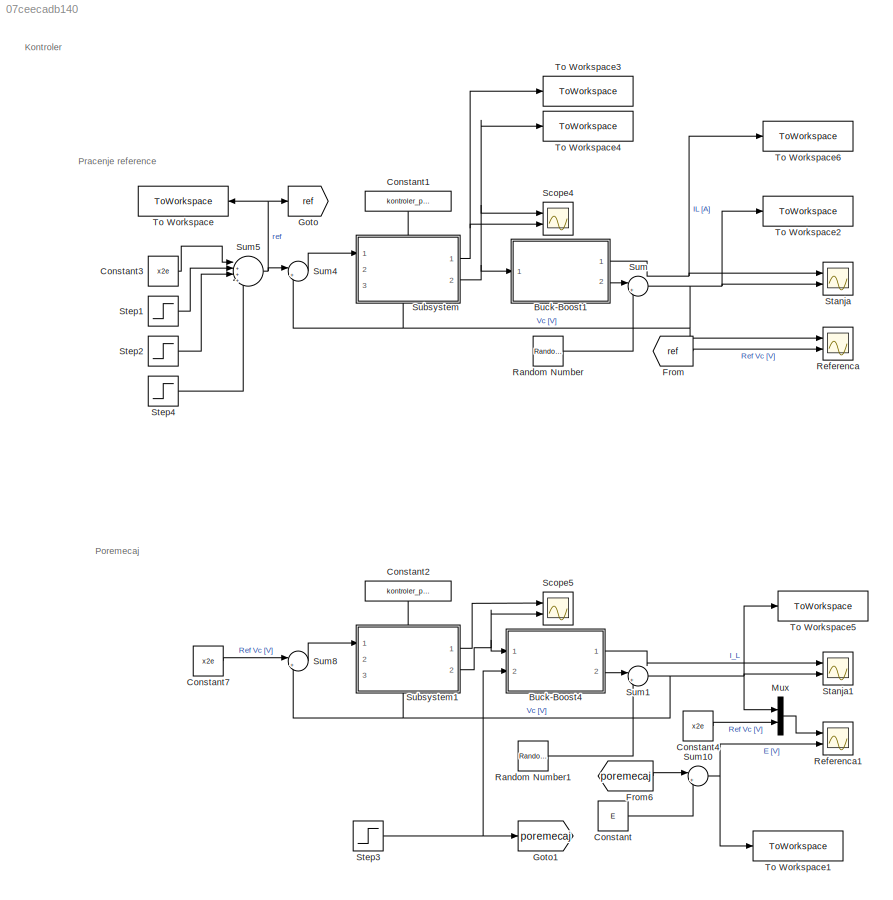
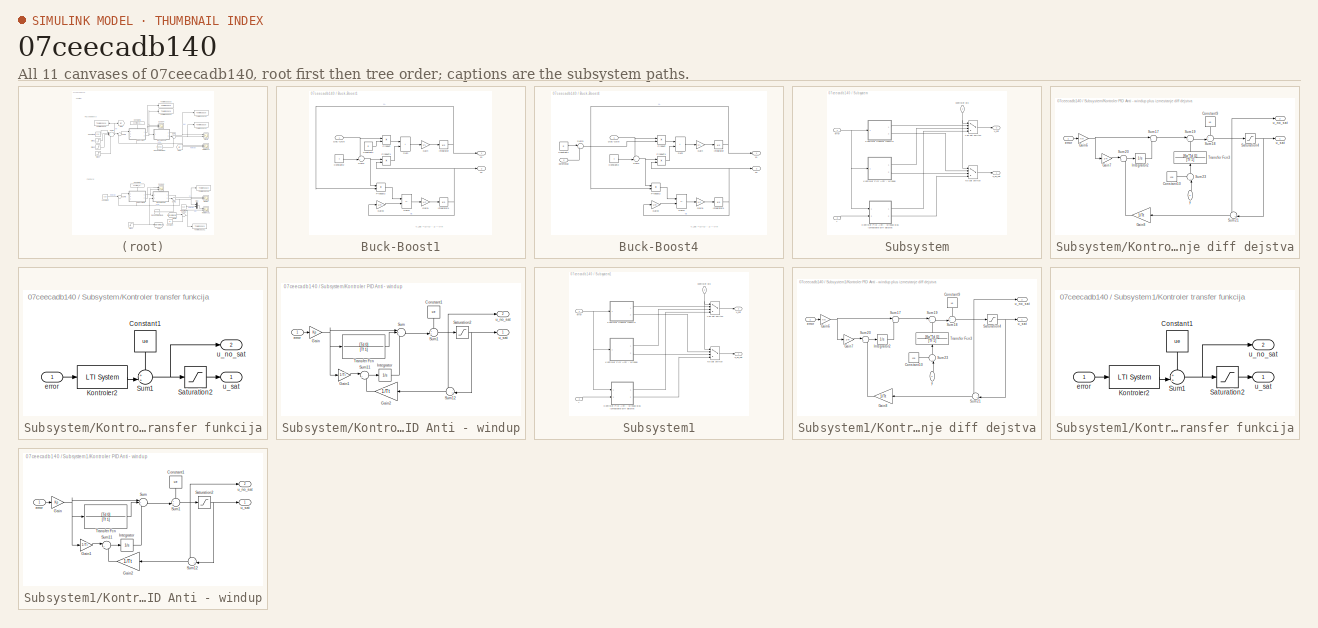
[diagram: thumbnail index - all 11 canvases of the model, root first then tree order]
MODEL slx_07ceecadb140
KIND model
CONFIG AbsTol = auto
CONFIG EnableMultiTasking = off
CONFIG FixedStep = time_step
CONFIG MaxStep = auto
CONFIG MinStep = auto
CONFIG RelTol = 1e-3
CONFIG SampleTimeConstraint = Unconstrained
CONFIG Solver = FixedStepAuto
CONFIG SolverName = FixedStepAuto
CONFIG StartTime = 0.0
CONFIG StopTime = sim_duration
BLOCK [SubSystem] Buck-Boost1
  Ports = [1, 2]
  RequestExecContextInheritance = off
BLOCK [Constant] Buck-Boost1/Constant1
  Value = E
BLOCK [Constant] Buck-Boost1/Constant2
BLOCK [Inport] Buck-Boost1/Duty cycle
BLOCK [Gain] Buck-Boost1/Gain
  Gain = 1/L
BLOCK [Gain] Buck-Boost1/Gain1
  Gain = 1/C
BLOCK [Gain] Buck-Boost1/Gain2
  Gain = 1/R
BLOCK [Integrator] Buck-Boost1/Integrator
  Ports = [1, 1]
BLOCK [Integrator] Buck-Boost1/Integrator1
  Ports = [1, 1]
BLOCK [Product] Buck-Boost1/Product
  Ports = [2, 1]
BLOCK [Product] Buck-Boost1/Product1
  Ports = [2, 1]
BLOCK [Product] Buck-Boost1/Product2
  Ports = [2, 1]
BLOCK [Sum] Buck-Boost1/Sum
  IconShape = rectangular
  Ports = [2, 1]
BLOCK [Sum] Buck-Boost1/Sum1
  Inputs = -+|
  Ports = [2, 1]
BLOCK [Sum] Buck-Boost1/Sum2
  IconShape = rectangular
  Inputs = --
  Ports = [2, 1]
BLOCK [Outport] Buck-Boost1/x1
BLOCK [Outport] Buck-Boost1/x2
  Port = 2
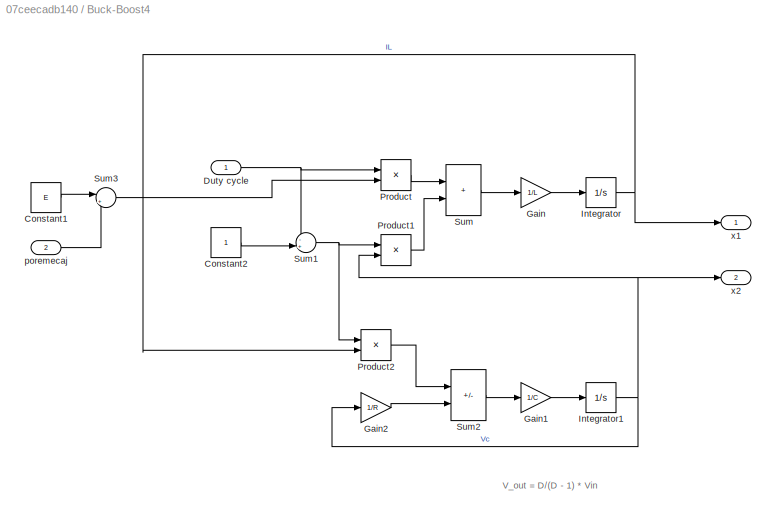
BLOCK [SubSystem] Buck-Boost4
  Ports = [2, 2]
  RequestExecContextInheritance = off
BLOCK [Constant] Buck-Boost4/Constant1
  Value = E
BLOCK [Constant] Buck-Boost4/Constant2
BLOCK [Inport] Buck-Boost4/Duty cycle
BLOCK [Gain] Buck-Boost4/Gain
  Gain = 1/L
BLOCK [Gain] Buck-Boost4/Gain1
  Gain = 1/C
BLOCK [Gain] Buck-Boost4/Gain2
  Gain = 1/R
BLOCK [Integrator] Buck-Boost4/Integrator
  Ports = [1, 1]
BLOCK [Integrator] Buck-Boost4/Integrator1
  Ports = [1, 1]
BLOCK [Product] Buck-Boost4/Product
  Ports = [2, 1]
BLOCK [Product] Buck-Boost4/Product1
  Ports = [2, 1]
BLOCK [Product] Buck-Boost4/Product2
  Ports = [2, 1]
BLOCK [Sum] Buck-Boost4/Sum
  IconShape = rectangular
  Ports = [2, 1]
BLOCK [Sum] Buck-Boost4/Sum1
  Inputs = -+|
  Ports = [2, 1]
BLOCK [Sum] Buck-Boost4/Sum2
  IconShape = rectangular
  Inputs = --
  Ports = [2, 1]
BLOCK [Sum] Buck-Boost4/Sum3
  Inputs = |++
  Ports = [2, 1]
BLOCK [Inport] Buck-Boost4/poremecaj
  Port = 2
BLOCK [Outport] Buck-Boost4/x1
BLOCK [Outport] Buck-Boost4/x2
  Port = 2
BLOCK [Constant] Constant
  Value = E
BLOCK [Constant] Constant1
  NameLocation = left
  Value = kontroler_pik
BLOCK [Constant] Constant2
  NameLocation = left
  Value = kontroler_pik
BLOCK [Constant] Constant3
  Value = x2e
BLOCK [Constant] Constant4
  Value = x2e
BLOCK [Constant] Constant7
  Value = x2e
BLOCK [From] From
  GotoTag = ref
BLOCK [From] From6
  GotoTag = poremecaj
BLOCK [Goto] Goto
  GotoTag = ref
BLOCK [Goto] Goto1
  GotoTag = poremecaj
BLOCK [Mux] Mux
  DisplayOption = bar
  Inputs = 2
  Ports = [2, 1]
BLOCK [RandomNumber] Random Number
  SampleTime = time_step
  Variance = sigma^2
BLOCK [RandomNumber] Random Number1
  SampleTime = time_step
  Variance = sigma^2
BLOCK [Scope] Referenca
  Floating = off
  NumInputPorts = 2
  Ports = [2]
  ScopeSpecificationString = Simulink.scopes.TimeScopeBlockCfg('CurrentConfiguration', extmgr.ConfigurationSet(extmgr.Configuration('Core','General UI',true),extmgr.Configuration('Core','Source UI',true),extmgr.Configuration('Sources','WiredSimulink',true,'DataLoggingVariableName','ScopeData1'),extmgr.Configuration('Visuals','Time Domain',true,'SerializedDisplays',{struct('MinYLimReal','-26.74199','MaxYLimReal','3.02947','YLa...<+1457ch>
BLOCK [Scope] Referenca1
  Floating = off
  NumInputPorts = 2
  Ports = [2]
  ScopeSpecificationString = Simulink.scopes.TimeScopeBlockCfg('CurrentConfiguration', extmgr.ConfigurationSet(extmgr.Configuration('Core','General UI',true),extmgr.Configuration('Core','Source UI',true),extmgr.Configuration('Sources','WiredSimulink',true,'DataLoggingVariableName','ScopeData2'),extmgr.Configuration('Visuals','Time Domain',true,'SerializedDisplays',{struct('MinYLimReal','-25.3125','MaxYLimReal','2.8125','YLabe...<+2094ch>
BLOCK [Scope] Scope4
  Floating = off
  NumInputPorts = 2
  Ports = [2]
  ScopeSpecificationString = Simulink.scopes.TimeScopeBlockCfg('CurrentConfiguration', extmgr.ConfigurationSet(extmgr.Configuration('Core','General UI',true),extmgr.Configuration('Core','Source UI',true),extmgr.Configuration('Sources','WiredSimulink',true,'DataLoggingVariableName','ScopeData3'),extmgr.Configuration('Visuals','Time Domain',true,'SerializedDisplays',{struct('MinYLimReal','-32624592998600632184942873490636918890...<+3933ch>
BLOCK [Scope] Scope5
  Floating = off
  NumInputPorts = 2
  Ports = [2]
  ScopeSpecificationString = Simulink.scopes.TimeScopeBlockCfg('CurrentConfiguration', extmgr.ConfigurationSet(extmgr.Configuration('Core','General UI',true),extmgr.Configuration('Core','Source UI',true),extmgr.Configuration('Sources','WiredSimulink',true,'DataLoggingVariableName','ScopeData4'),extmgr.Configuration('Visuals','Time Domain',true,'SerializedDisplays',{struct('MinYLimReal','0.5077','MaxYLimReal','0.77377','YLabel...<+1397ch>
BLOCK [Scope] Stanja
  Floating = off
  NumInputPorts = 2
  Ports = [2]
  ScopeSpecificationString = Simulink.scopes.TimeScopeBlockCfg('CurrentConfiguration', extmgr.ConfigurationSet(extmgr.Configuration('Core','General UI',true),extmgr.Configuration('Core','Source UI',true),extmgr.Configuration('Sources','WiredSimulink',true,'DataLoggingVariableName','ScopeData5'),extmgr.Configuration('Visuals','Time Domain',true,'SerializedDisplays',{struct('MinYLimReal','-10.64085','MaxYLimReal','9.70726','YLa...<+1420ch>
BLOCK [Scope] Stanja1
  Floating = off
  NumInputPorts = 2
  Ports = [2]
  ScopeSpecificationString = Simulink.scopes.TimeScopeBlockCfg('CurrentConfiguration', extmgr.ConfigurationSet(extmgr.Configuration('Core','General UI',true),extmgr.Configuration('Core','Source UI',true),extmgr.Configuration('Sources','WiredSimulink',true),extmgr.Configuration('Visuals','Time Domain',true,'SerializedDisplays',{struct('MinYLimReal','-57.65482','MaxYLimReal','15.04043','YLabelReal','','MinYLimMag','0.00000','Ma...<+1377ch>
BLOCK [Step] Step1
  After = amp_ref_stepdown1
  SampleTime = 0
  Time = t_ref_stepdown1
BLOCK [Step] Step2
  After = amp_ref_stepup1
  SampleTime = 0
  Time = t_ref_stepup1
BLOCK [Step] Step3
  After = amp_poremecaj
  SampleTime = 0
  Time = t_poremecaj
BLOCK [Step] Step4
  After = amp_ref_stepdown2
  SampleTime = 0
  Time = t_ref_stepdown2
BLOCK [SubSystem] Subsystem
  PortSchema = {"entries":[{"content":{"sides":[{"content":{"connectorIds":["In1"]},"type":"ConnectorPlacement.EquallySpacedRectSide","uuid":"0048fda4-5b4a-456a-8337-060e5808e354"},{"content":{"connectorIds":["Out1","Out2"],"side":"RIGHT"},"type":"ConnectorPlacement.EquallySpacedRectSide","uuid":"02cdbfc3-6320-4e2f-beb2-fd4bcb343bc0"},{"content":{"connectorIds":["In2"],"side":"TOP"},"type":"ConnectorPlacement.Eq...<+403ch>
  Ports = [3, 2]
  RequestExecContextInheritance = off
BLOCK [SubSystem] Subsystem/Kontroler PID Anti - windup
  Ports = [1, 2]
  RequestExecContextInheritance = off
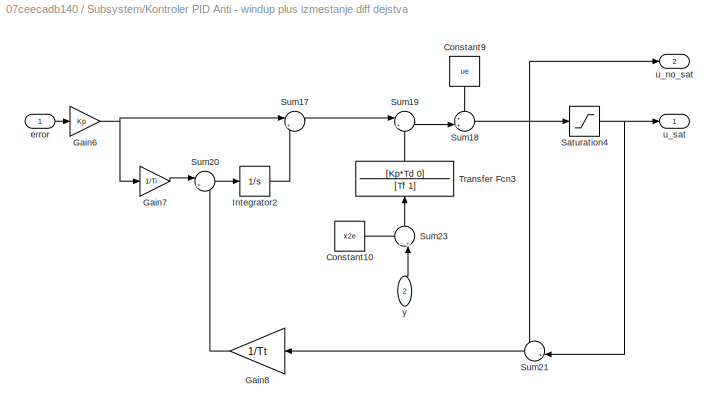
BLOCK [SubSystem] Subsystem/Kontroler PID Anti - windup plus izmestanje diff dejstva
  Ports = [2, 2]
  RequestExecContextInheritance = off
BLOCK [Constant] Subsystem/Kontroler PID Anti - windup plus izmestanje diff dejstva/Constant10
  Value = x2e
BLOCK [Constant] Subsystem/Kontroler PID Anti - windup plus izmestanje diff dejstva/Constant9
  NameLocation = left
  Value = ue
BLOCK [Gain] Subsystem/Kontroler PID Anti - windup plus izmestanje diff dejstva/Gain6
  Gain = Kp
BLOCK [Gain] Subsystem/Kontroler PID Anti - windup plus izmestanje diff dejstva/Gain7
  Gain = 1/Ti
BLOCK [Gain] Subsystem/Kontroler PID Anti - windup plus izmestanje diff dejstva/Gain8
  Gain = 1/Tt
  NameLocation = top
BLOCK [Integrator] Subsystem/Kontroler PID Anti - windup plus izmestanje diff dejstva/Integrator2
  Ports = [1, 1]
BLOCK [Saturate] Subsystem/Kontroler PID Anti - windup plus izmestanje diff dejstva/Saturation4
  LowerLimit = 0
  UpperLimit = 1
BLOCK [Sum] Subsystem/Kontroler PID Anti - windup plus izmestanje diff dejstva/Sum17
  Inputs = |++
  Ports = [2, 1]
BLOCK [Sum] Subsystem/Kontroler PID Anti - windup plus izmestanje diff dejstva/Sum18
  Inputs = ++|
  Ports = [2, 1]
BLOCK [Sum] Subsystem/Kontroler PID Anti - windup plus izmestanje diff dejstva/Sum19
  Inputs = |+-
  Ports = [2, 1]
BLOCK [Sum] Subsystem/Kontroler PID Anti - windup plus izmestanje diff dejstva/Sum20
  Inputs = |++
  Ports = [2, 1]
BLOCK [Sum] Subsystem/Kontroler PID Anti - windup plus izmestanje diff dejstva/Sum21
  Inputs = -+|
  Ports = [2, 1]
BLOCK [Sum] Subsystem/Kontroler PID Anti - windup plus izmestanje diff dejstva/Sum23
  Inputs = -+|
  NameLocation = right
  Ports = [2, 1]
BLOCK [TransferFcn] Subsystem/Kontroler PID Anti - windup plus izmestanje diff dejstva/Transfer Fcn3
  Denominator = [Tf 1]
  NameLocation = right
  Numerator = [Kp*Td 0]
BLOCK [Inport] Subsystem/Kontroler PID Anti - windup plus izmestanje diff dejstva/error
BLOCK [Outport] Subsystem/Kontroler PID Anti - windup plus izmestanje diff dejstva/u_no_sat
  Port = 2
BLOCK [Outport] Subsystem/Kontroler PID Anti - windup plus izmestanje diff dejstva/u_sat
BLOCK [Inport] Subsystem/Kontroler PID Anti - windup plus izmestanje diff dejstva/y
  NameLocation = right
  Port = 2
BLOCK [Constant] Subsystem/Kontroler PID Anti - windup/Constant1
  NameLocation = left
  Value = ue
BLOCK [Gain] Subsystem/Kontroler PID Anti - windup/Gain
  Gain = Kp
BLOCK [Gain] Subsystem/Kontroler PID Anti - windup/Gain1
  Gain = 1/Ti
BLOCK [Gain] Subsystem/Kontroler PID Anti - windup/Gain2
  Gain = 1/Tt
  NameLocation = top
BLOCK [Integrator] Subsystem/Kontroler PID Anti - windup/Integrator
  Ports = [1, 1]
BLOCK [Saturate] Subsystem/Kontroler PID Anti - windup/Saturation2
  LowerLimit = 0
  UpperLimit = 1
BLOCK [Sum] Subsystem/Kontroler PID Anti - windup/Sum
  Inputs = |+++
  Ports = [3, 1]
BLOCK [Sum] Subsystem/Kontroler PID Anti - windup/Sum1
  Inputs = ++|
  Ports = [2, 1]
BLOCK [Sum] Subsystem/Kontroler PID Anti - windup/Sum11
  Inputs = |++
  Ports = [2, 1]
BLOCK [Sum] Subsystem/Kontroler PID Anti - windup/Sum12
  Inputs = -+|
  Ports = [2, 1]
BLOCK [TransferFcn] Subsystem/Kontroler PID Anti - windup/Transfer Fcn
  Denominator = [Tf 1]
  Numerator = [Td 0]
BLOCK [Inport] Subsystem/Kontroler PID Anti - windup/error
BLOCK [Outport] Subsystem/Kontroler PID Anti - windup/u_no_sat
  Port = 2
BLOCK [Outport] Subsystem/Kontroler PID Anti - windup/u_sat
BLOCK [SubSystem] Subsystem/Kontroler transfer funkcija
  Ports = [1, 2]
  RequestExecContextInheritance = off
BLOCK [Constant] Subsystem/Kontroler transfer funkcija/Constant1
  NameLocation = left
  Value = ue
BLOCK [Reference] Subsystem/Kontroler transfer funkcija/Kontroler2  REF=cstblocks/LTI System
  Ports = [1, 1]
  SourceBlock = cstblocks/LTI System
  SourceProductBaseCode = CT
  SourceType = LTI Block
BLOCK [Saturate] Subsystem/Kontroler transfer funkcija/Saturation2
  LowerLimit = 0
  UpperLimit = 1
BLOCK [Sum] Subsystem/Kontroler transfer funkcija/Sum1
  Inputs = ++|
  Ports = [2, 1]
BLOCK [Inport] Subsystem/Kontroler transfer funkcija/error
BLOCK [Outport] Subsystem/Kontroler transfer funkcija/u_no_sat
  Port = 2
BLOCK [Outport] Subsystem/Kontroler transfer funkcija/u_sat
BLOCK [MultiPortSwitch] Subsystem/No sat switch
  InputSameDT = off
  Ports = [4, 1]
  SaturateOnIntegerOverflow = off
BLOCK [MultiPortSwitch] Subsystem/Yes sat switch
  InputSameDT = off
  Ports = [4, 1]
  SaturateOnIntegerOverflow = off
BLOCK [Inport] Subsystem/error
BLOCK [Inport] Subsystem/kontroler pik
  NameLocation = left
  Port = 2
BLOCK [Outport] Subsystem/u_no_sat
BLOCK [Outport] Subsystem/u_sat
  Port = 2
BLOCK [Inport] Subsystem/y
  Port = 3
BLOCK [SubSystem] Subsystem1
  PortSchema = {"entries":[{"content":{"sides":[{"content":{"connectorIds":["In1"]},"type":"ConnectorPlacement.EquallySpacedRectSide","uuid":"0048fda4-5b4a-456a-8337-060e5808e354"},{"content":{"connectorIds":["Out1","Out2"],"side":"RIGHT"},"type":"ConnectorPlacement.EquallySpacedRectSide","uuid":"02cdbfc3-6320-4e2f-beb2-fd4bcb343bc0"},{"content":{"connectorIds":["In2"],"side":"TOP"},"type":"ConnectorPlacement.Eq...<+403ch>
  Ports = [3, 2]
  RequestExecContextInheritance = off
BLOCK [SubSystem] Subsystem1/Kontroler PID Anti - windup
  Ports = [1, 2]
  RequestExecContextInheritance = off
BLOCK [SubSystem] Subsystem1/Kontroler PID Anti - windup plus izmestanje diff dejstva
  Ports = [2, 2]
  RequestExecContextInheritance = off
BLOCK [Constant] Subsystem1/Kontroler PID Anti - windup plus izmestanje diff dejstva/Constant10
  Value = x2e
BLOCK [Constant] Subsystem1/Kontroler PID Anti - windup plus izmestanje diff dejstva/Constant9
  NameLocation = left
  Value = ue
BLOCK [Gain] Subsystem1/Kontroler PID Anti - windup plus izmestanje diff dejstva/Gain6
  Gain = Kp
BLOCK [Gain] Subsystem1/Kontroler PID Anti - windup plus izmestanje diff dejstva/Gain7
  Gain = 1/Ti
BLOCK [Gain] Subsystem1/Kontroler PID Anti - windup plus izmestanje diff dejstva/Gain8
  Gain = 1/Tt
  NameLocation = top
BLOCK [Integrator] Subsystem1/Kontroler PID Anti - windup plus izmestanje diff dejstva/Integrator2
  Ports = [1, 1]
BLOCK [Saturate] Subsystem1/Kontroler PID Anti - windup plus izmestanje diff dejstva/Saturation4
  LowerLimit = 0
  UpperLimit = 1
BLOCK [Sum] Subsystem1/Kontroler PID Anti - windup plus izmestanje diff dejstva/Sum17
  Inputs = |++
  Ports = [2, 1]
BLOCK [Sum] Subsystem1/Kontroler PID Anti - windup plus izmestanje diff dejstva/Sum18
  Inputs = ++|
  Ports = [2, 1]
BLOCK [Sum] Subsystem1/Kontroler PID Anti - windup plus izmestanje diff dejstva/Sum19
  Inputs = |+-
  Ports = [2, 1]
BLOCK [Sum] Subsystem1/Kontroler PID Anti - windup plus izmestanje diff dejstva/Sum20
  Inputs = |++
  Ports = [2, 1]
BLOCK [Sum] Subsystem1/Kontroler PID Anti - windup plus izmestanje diff dejstva/Sum21
  Inputs = -+|
  Ports = [2, 1]
BLOCK [Sum] Subsystem1/Kontroler PID Anti - windup plus izmestanje diff dejstva/Sum23
  Inputs = -+|
  NameLocation = right
  Ports = [2, 1]
BLOCK [TransferFcn] Subsystem1/Kontroler PID Anti - windup plus izmestanje diff dejstva/Transfer Fcn3
  Denominator = [Tf 1]
  NameLocation = right
  Numerator = [Kp*Td 0]
BLOCK [Inport] Subsystem1/Kontroler PID Anti - windup plus izmestanje diff dejstva/error
BLOCK [Outport] Subsystem1/Kontroler PID Anti - windup plus izmestanje diff dejstva/u_no_sat
  Port = 2
BLOCK [Outport] Subsystem1/Kontroler PID Anti - windup plus izmestanje diff dejstva/u_sat
BLOCK [Inport] Subsystem1/Kontroler PID Anti - windup plus izmestanje diff dejstva/y
  NameLocation = right
  Port = 2
BLOCK [Constant] Subsystem1/Kontroler PID Anti - windup/Constant1
  NameLocation = left
  Value = ue
BLOCK [Gain] Subsystem1/Kontroler PID Anti - windup/Gain
  Gain = Kp
BLOCK [Gain] Subsystem1/Kontroler PID Anti - windup/Gain1
  Gain = 1/Ti
BLOCK [Gain] Subsystem1/Kontroler PID Anti - windup/Gain2
  Gain = 1/Tt
  NameLocation = top
BLOCK [Integrator] Subsystem1/Kontroler PID Anti - windup/Integrator
  Ports = [1, 1]
BLOCK [Saturate] Subsystem1/Kontroler PID Anti - windup/Saturation2
  LowerLimit = 0
  UpperLimit = 1
BLOCK [Sum] Subsystem1/Kontroler PID Anti - windup/Sum
  Inputs = |+++
  Ports = [3, 1]
BLOCK [Sum] Subsystem1/Kontroler PID Anti - windup/Sum1
  Inputs = ++|
  Ports = [2, 1]
BLOCK [Sum] Subsystem1/Kontroler PID Anti - windup/Sum11
  Inputs = |++
  Ports = [2, 1]
BLOCK [Sum] Subsystem1/Kontroler PID Anti - windup/Sum12
  Inputs = -+|
  Ports = [2, 1]
BLOCK [TransferFcn] Subsystem1/Kontroler PID Anti - windup/Transfer Fcn
  Denominator = [Tf 1]
  Numerator = [Td 0]
BLOCK [Inport] Subsystem1/Kontroler PID Anti - windup/error
BLOCK [Outport] Subsystem1/Kontroler PID Anti - windup/u_no_sat
  Port = 2
BLOCK [Outport] Subsystem1/Kontroler PID Anti - windup/u_sat
BLOCK [SubSystem] Subsystem1/Kontroler transfer funkcija
  Ports = [1, 2]
  RequestExecContextInheritance = off
BLOCK [Constant] Subsystem1/Kontroler transfer funkcija/Constant1
  NameLocation = left
  Value = ue
BLOCK [Reference] Subsystem1/Kontroler transfer funkcija/Kontroler2  REF=cstblocks/LTI System
  Ports = [1, 1]
  SourceBlock = cstblocks/LTI System
  SourceProductBaseCode = CT
  SourceType = LTI Block
BLOCK [Saturate] Subsystem1/Kontroler transfer funkcija/Saturation2
  LowerLimit = 0
  UpperLimit = 1
BLOCK [Sum] Subsystem1/Kontroler transfer funkcija/Sum1
  Inputs = ++|
  Ports = [2, 1]
BLOCK [Inport] Subsystem1/Kontroler transfer funkcija/error
BLOCK [Outport] Subsystem1/Kontroler transfer funkcija/u_no_sat
  Port = 2
BLOCK [Outport] Subsystem1/Kontroler transfer funkcija/u_sat
BLOCK [MultiPortSwitch] Subsystem1/No sat switch
  InputSameDT = off
  Ports = [4, 1]
  SaturateOnIntegerOverflow = off
BLOCK [MultiPortSwitch] Subsystem1/Yes sat switch
  InputSameDT = off
  Ports = [4, 1]
  SaturateOnIntegerOverflow = off
BLOCK [Inport] Subsystem1/error
BLOCK [Inport] Subsystem1/kontroler pik
  NameLocation = left
  Port = 2
BLOCK [Outport] Subsystem1/u_no_sat
BLOCK [Outport] Subsystem1/u_sat
  Port = 2
BLOCK [Inport] Subsystem1/y
  Port = 3
BLOCK [Sum] Sum
  Inputs = |++
  Ports = [2, 1]
BLOCK [Sum] Sum1
  Inputs = |++
  Ports = [2, 1]
BLOCK [Sum] Sum10
  Inputs = |++
  Ports = [2, 1]
BLOCK [Sum] Sum4
  Inputs = |+-
  Ports = [2, 1]
BLOCK [Sum] Sum5
  Inputs = |++++
  Ports = [4, 1]
BLOCK [Sum] Sum8
  Inputs = |+-
  Ports = [2, 1]
BLOCK [ToWorkspace] To Workspace
  FixptAsFi = on
  MaxDataPoints = inf
  Ports = [1]
  SampleTime = -1
  SaveFormat = Timeseries
  VariableName = referenca
BLOCK [ToWorkspace] To Workspace1
  FixptAsFi = on
  MaxDataPoints = inf
  Ports = [1]
  SampleTime = -1
  SaveFormat = Timeseries
  VariableName = poremecaj
BLOCK [ToWorkspace] To Workspace2
  FixptAsFi = on
  MaxDataPoints = inf
  Ports = [1]
  SampleTime = -1
  SaveFormat = Timeseries
  VariableName = x2
BLOCK [ToWorkspace] To Workspace3
  FixptAsFi = on
  MaxDataPoints = inf
  Ports = [1]
  SampleTime = -1
  SaveFormat = Timeseries
  VariableName = u
BLOCK [ToWorkspace] To Workspace4
  FixptAsFi = on
  MaxDataPoints = inf
  Ports = [1]
  SampleTime = -1
  SaveFormat = Timeseries
  VariableName = u_sat
BLOCK [ToWorkspace] To Workspace5
  FixptAsFi = on
  MaxDataPoints = inf
  Ports = [1]
  SampleTime = -1
  SaveFormat = Timeseries
  VariableName = x2_poremecaj
BLOCK [ToWorkspace] To Workspace6
  FixptAsFi = on
  MaxDataPoints = inf
  Ports = [1]
  SampleTime = -1
  SaveFormat = Timeseries
  VariableName = x1
ANNOTATION (root): Kontroler
ANNOTATION (root): Poremecaj
ANNOTATION (root): Pracenje reference
ANNOTATION Buck-Boost1: V_out = D/(D - 1) * Vin
ANNOTATION Buck-Boost4: V_out = D/(D - 1) * Vin
LINE Buck-Boost1/Constant1:1 -> Buck-Boost1/Product:2
LINE Buck-Boost1/Constant2:1 -> Buck-Boost1/Sum1:2
NET Buck-Boost1/Duty cycle:1 -> Buck-Boost1/Product:1, Buck-Boost1/Sum1:1
LINE Buck-Boost1/Gain1:1 -> Buck-Boost1/Integrator1:1
LINE Buck-Boost1/Gain2:1 -> Buck-Boost1/Sum2:2
LINE Buck-Boost1/Gain:1 -> Buck-Boost1/Integrator:1
NET Buck-Boost1/Integrator1:1 -> Buck-Boost1/Gain2:1, Buck-Boost1/Product1:2, Buck-Boost1/x2:1
NET Buck-Boost1/Integrator:1 -> Buck-Boost1/Product2:2, Buck-Boost1/x1:1
LINE Buck-Boost1/Product1:1 -> Buck-Boost1/Sum:2
LINE Buck-Boost1/Product2:1 -> Buck-Boost1/Sum2:1
LINE Buck-Boost1/Product:1 -> Buck-Boost1/Sum:1
NET Buck-Boost1/Sum1:1 -> Buck-Boost1/Product1:1, Buck-Boost1/Product2:1
LINE Buck-Boost1/Sum2:1 -> Buck-Boost1/Gain1:1
LINE Buck-Boost1/Sum:1 -> Buck-Boost1/Gain:1
NET Buck-Boost1:1 -> Stanja:1, To Workspace6:1
LINE Buck-Boost1:2 -> Sum:1
LINE Buck-Boost4/Constant1:1 -> Buck-Boost4/Sum3:1
LINE Buck-Boost4/Constant2:1 -> Buck-Boost4/Sum1:2
NET Buck-Boost4/Duty cycle:1 -> Buck-Boost4/Product:1, Buck-Boost4/Sum1:1
LINE Buck-Boost4/Gain1:1 -> Buck-Boost4/Integrator1:1
LINE Buck-Boost4/Gain2:1 -> Buck-Boost4/Sum2:2
LINE Buck-Boost4/Gain:1 -> Buck-Boost4/Integrator:1
NET Buck-Boost4/Integrator1:1 -> Buck-Boost4/Gain2:1, Buck-Boost4/Product1:2, Buck-Boost4/x2:1
NET Buck-Boost4/Integrator:1 -> Buck-Boost4/Product2:2, Buck-Boost4/x1:1
LINE Buck-Boost4/Product1:1 -> Buck-Boost4/Sum:2
LINE Buck-Boost4/Product2:1 -> Buck-Boost4/Sum2:1
LINE Buck-Boost4/Product:1 -> Buck-Boost4/Sum:1
NET Buck-Boost4/Sum1:1 -> Buck-Boost4/Product1:1, Buck-Boost4/Product2:1
LINE Buck-Boost4/Sum2:1 -> Buck-Boost4/Gain1:1
LINE Buck-Boost4/Sum3:1 -> Buck-Boost4/Product:2
LINE Buck-Boost4/Sum:1 -> Buck-Boost4/Gain:1
LINE Buck-Boost4/poremecaj:1 -> Buck-Boost4/Sum3:2
LINE Buck-Boost4:1 -> Stanja1:1
LINE Buck-Boost4:2 -> Sum1:1
LINE Constant1:1 -> Subsystem:2
LINE Constant2:1 -> Subsystem1:2
LINE Constant3:1 -> Sum5:1
LINE Constant4:1 -> Mux:2
LINE Constant7:1 -> Sum8:1
LINE Constant:1 -> Sum10:2
LINE From6:1 -> Sum10:1
LINE From:1 -> Referenca:2
LINE Mux:1 -> Referenca1:1
LINE Random Number1:1 -> Sum1:2
LINE Random Number:1 -> Sum:2
LINE Step1:1 -> Sum5:2
LINE Step2:1 -> Sum5:3
NET Step3:1 -> Buck-Boost4:2, Goto1:1
LINE Step4:1 -> Sum5:4
LINE Subsystem/Kontroler PID Anti - windup plus izmestanje diff dejstva/Constant10:1 -> Subsystem/Kontroler PID Anti - windup plus izmestanje diff dejstva/Sum23:1
LINE Subsystem/Kontroler PID Anti - windup plus izmestanje diff dejstva/Constant9:1 -> Subsystem/Kontroler PID Anti - windup plus izmestanje diff dejstva/Sum18:1
NET Subsystem/Kontroler PID Anti - windup plus izmestanje diff dejstva/Gain6:1 -> Subsystem/Kontroler PID Anti - windup plus izmestanje diff dejstva/Gain7:1, Subsystem/Kontroler PID Anti - windup plus izmestanje diff dejstva/Sum17:1
LINE Subsystem/Kontroler PID Anti - windup plus izmestanje diff dejstva/Gain7:1 -> Subsystem/Kontroler PID Anti - windup plus izmestanje diff dejstva/Sum20:1
LINE Subsystem/Kontroler PID Anti - windup plus izmestanje diff dejstva/Gain8:1 -> Subsystem/Kontroler PID Anti - windup plus izmestanje diff dejstva/Sum20:2
LINE Subsystem/Kontroler PID Anti - windup plus izmestanje diff dejstva/Integrator2:1 -> Subsystem/Kontroler PID Anti - windup plus izmestanje diff dejstva/Sum17:2
NET Subsystem/Kontroler PID Anti - windup plus izmestanje diff dejstva/Saturation4:1 -> Subsystem/Kontroler PID Anti - windup plus izmestanje diff dejstva/Sum21:2, Subsystem/Kontroler PID Anti - windup plus izmestanje diff dejstva/u_sat:1
LINE Subsystem/Kontroler PID Anti - windup plus izmestanje diff dejstva/Sum17:1 -> Subsystem/Kontroler PID Anti - windup plus izmestanje diff dejstva/Sum19:1
NET Subsystem/Kontroler PID Anti - windup plus izmestanje diff dejstva/Sum18:1 -> Subsystem/Kontroler PID Anti - windup plus izmestanje diff dejstva/Saturation4:1, Subsystem/Kontroler PID Anti - windup plus izmestanje diff dejstva/Sum21:1, Subsystem/Kontroler PID Anti - windup plus izmestanje diff dejstva/u_no_sat:1
LINE Subsystem/Kontroler PID Anti - windup plus izmestanje diff dejstva/Sum19:1 -> Subsystem/Kontroler PID Anti - windup plus izmestanje diff dejstva/Sum18:2
LINE Subsystem/Kontroler PID Anti - windup plus izmestanje diff dejstva/Sum20:1 -> Subsystem/Kontroler PID Anti - windup plus izmestanje diff dejstva/Integrator2:1
LINE Subsystem/Kontroler PID Anti - windup plus izmestanje diff dejstva/Sum21:1 -> Subsystem/Kontroler PID Anti - windup plus izmestanje diff dejstva/Gain8:1
LINE Subsystem/Kontroler PID Anti - windup plus izmestanje diff dejstva/Sum23:1 -> Subsystem/Kontroler PID Anti - windup plus izmestanje diff dejstva/Transfer Fcn3:1
LINE Subsystem/Kontroler PID Anti - windup plus izmestanje diff dejstva/Transfer Fcn3:1 -> Subsystem/Kontroler PID Anti - windup plus izmestanje diff dejstva/Sum19:2
LINE Subsystem/Kontroler PID Anti - windup plus izmestanje diff dejstva/error:1 -> Subsystem/Kontroler PID Anti - windup plus izmestanje diff dejstva/Gain6:1
LINE Subsystem/Kontroler PID Anti - windup plus izmestanje diff dejstva/y:1 -> Subsystem/Kontroler PID Anti - windup plus izmestanje diff dejstva/Sum23:2
LINE Subsystem/Kontroler PID Anti - windup plus izmestanje diff dejstva:1 -> Subsystem/Yes sat switch:4
LINE Subsystem/Kontroler PID Anti - windup plus izmestanje diff dejstva:2 -> Subsystem/No sat switch:4
LINE Subsystem/Kontroler PID Anti - windup/Constant1:1 -> Subsystem/Kontroler PID Anti - windup/Sum1:1
LINE Subsystem/Kontroler PID Anti - windup/Gain1:1 -> Subsystem/Kontroler PID Anti - windup/Sum11:1
LINE Subsystem/Kontroler PID Anti - windup/Gain2:1 -> Subsystem/Kontroler PID Anti - windup/Sum11:2
NET Subsystem/Kontroler PID Anti - windup/Gain:1 -> Subsystem/Kontroler PID Anti - windup/Gain1:1, Subsystem/Kontroler PID Anti - windup/Sum:1, Subsystem/Kontroler PID Anti - windup/Transfer Fcn:1
LINE Subsystem/Kontroler PID Anti - windup/Integrator:1 -> Subsystem/Kontroler PID Anti - windup/Sum:3
NET Subsystem/Kontroler PID Anti - windup/Saturation2:1 -> Subsystem/Kontroler PID Anti - windup/Sum12:2, Subsystem/Kontroler PID Anti - windup/u_sat:1
LINE Subsystem/Kontroler PID Anti - windup/Sum11:1 -> Subsystem/Kontroler PID Anti - windup/Integrator:1
LINE Subsystem/Kontroler PID Anti - windup/Sum12:1 -> Subsystem/Kontroler PID Anti - windup/Gain2:1
NET Subsystem/Kontroler PID Anti - windup/Sum1:1 -> Subsystem/Kontroler PID Anti - windup/Saturation2:1, Subsystem/Kontroler PID Anti - windup/Sum12:1, Subsystem/Kontroler PID Anti - windup/u_no_sat:1
LINE Subsystem/Kontroler PID Anti - windup/Sum:1 -> Subsystem/Kontroler PID Anti - windup/Sum1:2
LINE Subsystem/Kontroler PID Anti - windup/Transfer Fcn:1 -> Subsystem/Kontroler PID Anti - windup/Sum:2
LINE Subsystem/Kontroler PID Anti - windup/error:1 -> Subsystem/Kontroler PID Anti - windup/Gain:1
LINE Subsystem/Kontroler PID Anti - windup:1 -> Subsystem/Yes sat switch:3
LINE Subsystem/Kontroler PID Anti - windup:2 -> Subsystem/No sat switch:3
LINE Subsystem/Kontroler transfer funkcija/Constant1:1 -> Subsystem/Kontroler transfer funkcija/Sum1:1
LINE Subsystem/Kontroler transfer funkcija/Kontroler2:1 -> Subsystem/Kontroler transfer funkcija/Sum1:2
LINE Subsystem/Kontroler transfer funkcija/Saturation2:1 -> Subsystem/Kontroler transfer funkcija/u_sat:1
NET Subsystem/Kontroler transfer funkcija/Sum1:1 -> Subsystem/Kontroler transfer funkcija/Saturation2:1, Subsystem/Kontroler transfer funkcija/u_no_sat:1
LINE Subsystem/Kontroler transfer funkcija/error:1 -> Subsystem/Kontroler transfer funkcija/Kontroler2:1
LINE Subsystem/Kontroler transfer funkcija:1 -> Subsystem/Yes sat switch:2
LINE Subsystem/Kontroler transfer funkcija:2 -> Subsystem/No sat switch:2
LINE Subsystem/No sat switch:1 -> Subsystem/u_no_sat:1
LINE Subsystem/Yes sat switch:1 -> Subsystem/u_sat:1
NET Subsystem/error:1 -> Subsystem/Kontroler PID Anti - windup plus izmestanje diff dejstva:1, Subsystem/Kontroler PID Anti - windup:1, Subsystem/Kontroler transfer funkcija:1
NET Subsystem/kontroler pik:1 -> Subsystem/No sat switch:1, Subsystem/Yes sat switch:1
LINE Subsystem/y:1 -> Subsystem/Kontroler PID Anti - windup plus izmestanje diff dejstva:2
LINE Subsystem1/Kontroler PID Anti - windup plus izmestanje diff dejstva/Constant10:1 -> Subsystem1/Kontroler PID Anti - windup plus izmestanje diff dejstva/Sum23:1
LINE Subsystem1/Kontroler PID Anti - windup plus izmestanje diff dejstva/Constant9:1 -> Subsystem1/Kontroler PID Anti - windup plus izmestanje diff dejstva/Sum18:1
NET Subsystem1/Kontroler PID Anti - windup plus izmestanje diff dejstva/Gain6:1 -> Subsystem1/Kontroler PID Anti - windup plus izmestanje diff dejstva/Gain7:1, Subsystem1/Kontroler PID Anti - windup plus izmestanje diff dejstva/Sum17:1
LINE Subsystem1/Kontroler PID Anti - windup plus izmestanje diff dejstva/Gain7:1 -> Subsystem1/Kontroler PID Anti - windup plus izmestanje diff dejstva/Sum20:1
LINE Subsystem1/Kontroler PID Anti - windup plus izmestanje diff dejstva/Gain8:1 -> Subsystem1/Kontroler PID Anti - windup plus izmestanje diff dejstva/Sum20:2
LINE Subsystem1/Kontroler PID Anti - windup plus izmestanje diff dejstva/Integrator2:1 -> Subsystem1/Kontroler PID Anti - windup plus izmestanje diff dejstva/Sum17:2
NET Subsystem1/Kontroler PID Anti - windup plus izmestanje diff dejstva/Saturation4:1 -> Subsystem1/Kontroler PID Anti - windup plus izmestanje diff dejstva/Sum21:2, Subsystem1/Kontroler PID Anti - windup plus izmestanje diff dejstva/u_sat:1
LINE Subsystem1/Kontroler PID Anti - windup plus izmestanje diff dejstva/Sum17:1 -> Subsystem1/Kontroler PID Anti - windup plus izmestanje diff dejstva/Sum19:1
NET Subsystem1/Kontroler PID Anti - windup plus izmestanje diff dejstva/Sum18:1 -> Subsystem1/Kontroler PID Anti - windup plus izmestanje diff dejstva/Saturation4:1, Subsystem1/Kontroler PID Anti - windup plus izmestanje diff dejstva/Sum21:1, Subsystem1/Kontroler PID Anti - windup plus izmestanje diff dejstva/u_no_sat:1
LINE Subsystem1/Kontroler PID Anti - windup plus izmestanje diff dejstva/Sum19:1 -> Subsystem1/Kontroler PID Anti - windup plus izmestanje diff dejstva/Sum18:2
LINE Subsystem1/Kontroler PID Anti - windup plus izmestanje diff dejstva/Sum20:1 -> Subsystem1/Kontroler PID Anti - windup plus izmestanje diff dejstva/Integrator2:1
LINE Subsystem1/Kontroler PID Anti - windup plus izmestanje diff dejstva/Sum21:1 -> Subsystem1/Kontroler PID Anti - windup plus izmestanje diff dejstva/Gain8:1
LINE Subsystem1/Kontroler PID Anti - windup plus izmestanje diff dejstva/Sum23:1 -> Subsystem1/Kontroler PID Anti - windup plus izmestanje diff dejstva/Transfer Fcn3:1
LINE Subsystem1/Kontroler PID Anti - windup plus izmestanje diff dejstva/Transfer Fcn3:1 -> Subsystem1/Kontroler PID Anti - windup plus izmestanje diff dejstva/Sum19:2
LINE Subsystem1/Kontroler PID Anti - windup plus izmestanje diff dejstva/error:1 -> Subsystem1/Kontroler PID Anti - windup plus izmestanje diff dejstva/Gain6:1
LINE Subsystem1/Kontroler PID Anti - windup plus izmestanje diff dejstva/y:1 -> Subsystem1/Kontroler PID Anti - windup plus izmestanje diff dejstva/Sum23:2
LINE Subsystem1/Kontroler PID Anti - windup plus izmestanje diff dejstva:1 -> Subsystem1/Yes sat switch:4
LINE Subsystem1/Kontroler PID Anti - windup plus izmestanje diff dejstva:2 -> Subsystem1/No sat switch:4
LINE Subsystem1/Kontroler PID Anti - windup/Constant1:1 -> Subsystem1/Kontroler PID Anti - windup/Sum1:1
LINE Subsystem1/Kontroler PID Anti - windup/Gain1:1 -> Subsystem1/Kontroler PID Anti - windup/Sum11:1
LINE Subsystem1/Kontroler PID Anti - windup/Gain2:1 -> Subsystem1/Kontroler PID Anti - windup/Sum11:2
NET Subsystem1/Kontroler PID Anti - windup/Gain:1 -> Subsystem1/Kontroler PID Anti - windup/Gain1:1, Subsystem1/Kontroler PID Anti - windup/Sum:1, Subsystem1/Kontroler PID Anti - windup/Transfer Fcn:1
LINE Subsystem1/Kontroler PID Anti - windup/Integrator:1 -> Subsystem1/Kontroler PID Anti - windup/Sum:3
NET Subsystem1/Kontroler PID Anti - windup/Saturation2:1 -> Subsystem1/Kontroler PID Anti - windup/Sum12:2, Subsystem1/Kontroler PID Anti - windup/u_sat:1
LINE Subsystem1/Kontroler PID Anti - windup/Sum11:1 -> Subsystem1/Kontroler PID Anti - windup/Integrator:1
LINE Subsystem1/Kontroler PID Anti - windup/Sum12:1 -> Subsystem1/Kontroler PID Anti - windup/Gain2:1
NET Subsystem1/Kontroler PID Anti - windup/Sum1:1 -> Subsystem1/Kontroler PID Anti - windup/Saturation2:1, Subsystem1/Kontroler PID Anti - windup/Sum12:1, Subsystem1/Kontroler PID Anti - windup/u_no_sat:1
LINE Subsystem1/Kontroler PID Anti - windup/Sum:1 -> Subsystem1/Kontroler PID Anti - windup/Sum1:2
LINE Subsystem1/Kontroler PID Anti - windup/Transfer Fcn:1 -> Subsystem1/Kontroler PID Anti - windup/Sum:2
LINE Subsystem1/Kontroler PID Anti - windup/error:1 -> Subsystem1/Kontroler PID Anti - windup/Gain:1
LINE Subsystem1/Kontroler PID Anti - windup:1 -> Subsystem1/Yes sat switch:3
LINE Subsystem1/Kontroler PID Anti - windup:2 -> Subsystem1/No sat switch:3
LINE Subsystem1/Kontroler transfer funkcija/Constant1:1 -> Subsystem1/Kontroler transfer funkcija/Sum1:1
LINE Subsystem1/Kontroler transfer funkcija/Kontroler2:1 -> Subsystem1/Kontroler transfer funkcija/Sum1:2
LINE Subsystem1/Kontroler transfer funkcija/Saturation2:1 -> Subsystem1/Kontroler transfer funkcija/u_sat:1
NET Subsystem1/Kontroler transfer funkcija/Sum1:1 -> Subsystem1/Kontroler transfer funkcija/Saturation2:1, Subsystem1/Kontroler transfer funkcija/u_no_sat:1
LINE Subsystem1/Kontroler transfer funkcija/error:1 -> Subsystem1/Kontroler transfer funkcija/Kontroler2:1
LINE Subsystem1/Kontroler transfer funkcija:1 -> Subsystem1/Yes sat switch:2
LINE Subsystem1/Kontroler transfer funkcija:2 -> Subsystem1/No sat switch:2
LINE Subsystem1/No sat switch:1 -> Subsystem1/u_no_sat:1
LINE Subsystem1/Yes sat switch:1 -> Subsystem1/u_sat:1
NET Subsystem1/error:1 -> Subsystem1/Kontroler PID Anti - windup plus izmestanje diff dejstva:1, Subsystem1/Kontroler PID Anti - windup:1, Subsystem1/Kontroler transfer funkcija:1
NET Subsystem1/kontroler pik:1 -> Subsystem1/No sat switch:1, Subsystem1/Yes sat switch:1
LINE Subsystem1/y:1 -> Subsystem1/Kontroler PID Anti - windup plus izmestanje diff dejstva:2
LINE Subsystem1:1 -> Scope5:1
NET Subsystem1:2 -> Buck-Boost4:1, Scope5:2
NET Subsystem:1 -> Scope4:2, To Workspace3:1
NET Subsystem:2 -> Buck-Boost1:1, Scope4:1, To Workspace4:1
NET Sum10:1 -> Referenca1:2, To Workspace1:1
NET Sum1:1 -> Mux:1, Stanja1:2, Subsystem1:3, Sum8:2, To Workspace5:1
LINE Sum4:1 -> Subsystem:1
NET Sum5:1 -> Goto:1, Sum4:1, To Workspace:1
LINE Sum8:1 -> Subsystem1:1
NET Sum:1 -> Referenca:1, Stanja:2, Subsystem:3, Sum4:2, To Workspace2:1
note: NET lines group one-source signal fan-out (src -> all destinations, sorted); 1:1 wires keep LINE
